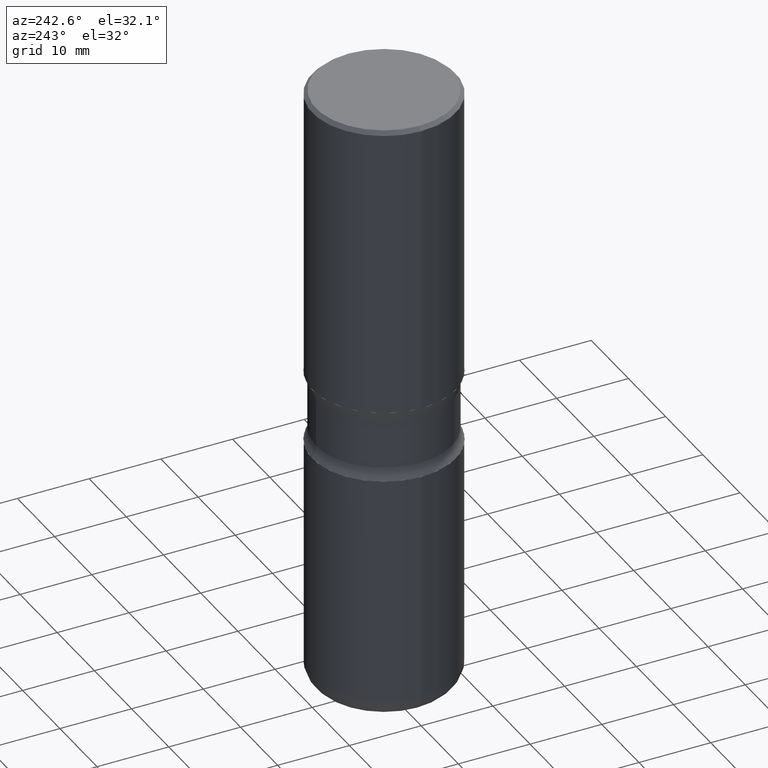
[diagram: clean part render]
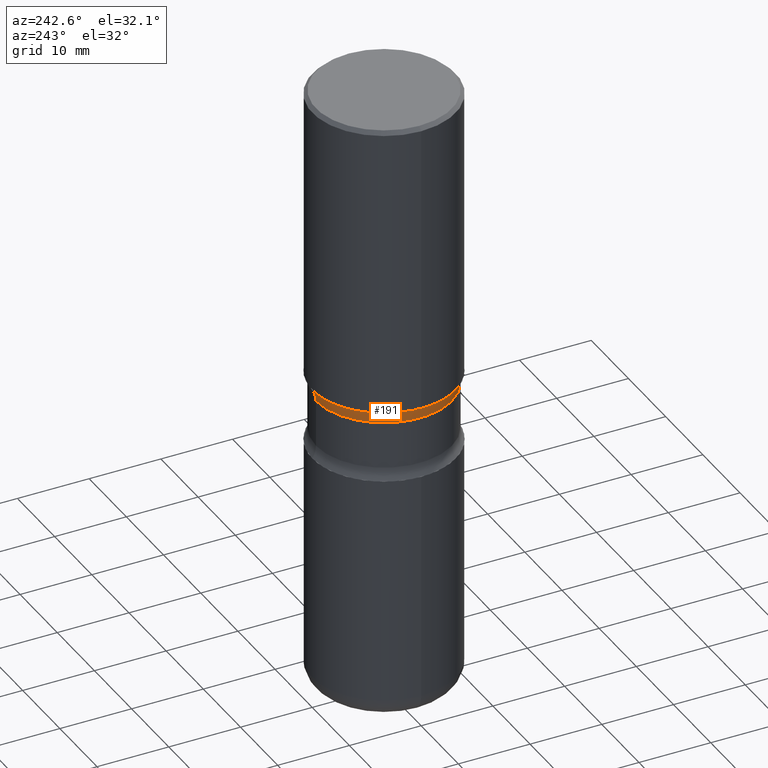
[diagram: same view with one face highlighted and labeled with its STEP entity id]
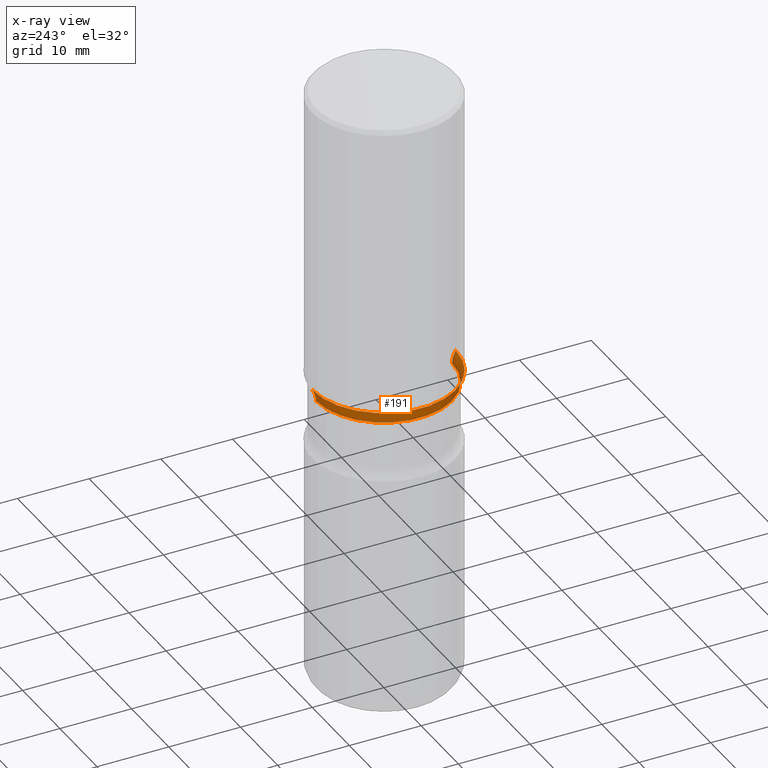
[diagram: x-ray of the same camera — body ghosted, the highlighted face saturated]
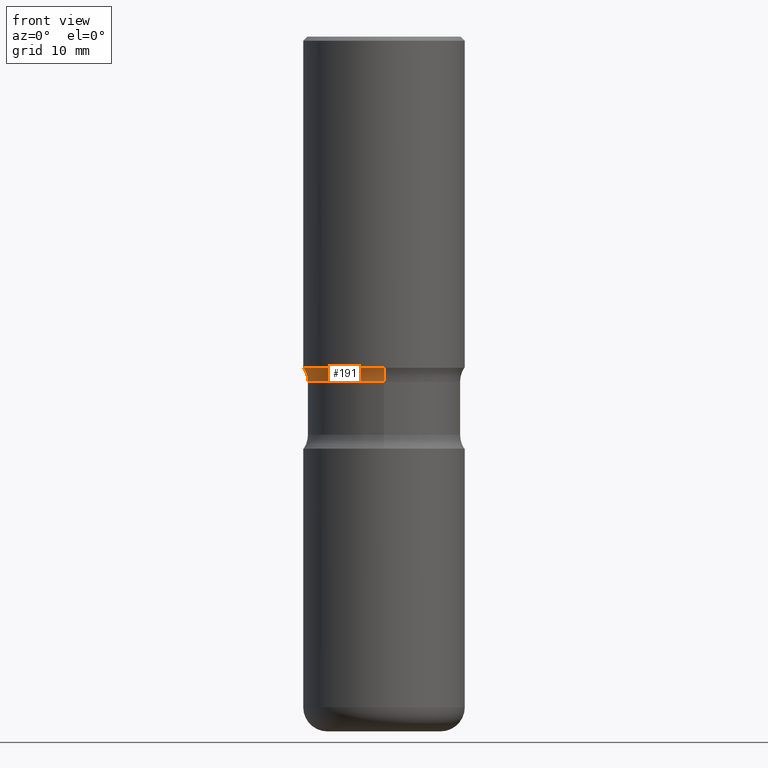
[diagram: same view with one face highlighted and labeled with its STEP entity id]
A machine part, auxiliary view. The second image highlights one B-rep face of the part: STEP entity #191.
The next image is the same camera in x-ray: the body ghosted, the highlighted face saturated — about 3% of this face is hidden behind the body in this view.
A second angle (front view) of the same face is appended — the face is thin or edge-on in the first view.
In plain terms, the highlighted toroidal blend (fillet) surface has major radius 12.6619 mm and minor (blend) radius 3.175 mm.
Its self-contained STEP definition (entity closure, byte-faithful):
#42 = AXIS2_PLACEMENT_3D ( 'NONE', #522, #132, #485 ) ;
#53 = DIRECTION ( 'NONE',  ( 1.000000000000000000, -6.860497997771530774E-15, 4.839926206449336526E-29 ) ) ;
#65 = DIRECTION ( 'NONE',  ( 2.395708792001990434E-29, -3.562740511317534079E-15, -1.000000000000000000 ) ) ;
#74 = DIRECTION ( 'NONE',  ( -6.982962677686265133E-15, -1.000000000000000000, 0.000000000000000000 ) ) ;
#101 = CARTESIAN_POINT ( 'NONE',  ( 2.608136560115860833E-15, 0.3734999999999940590, -1.682231930840100809 ) ) ;
#117 = AXIS2_PLACEMENT_3D ( 'NONE', #528, #65, #407 ) ;
#119 = CARTESIAN_POINT ( 'NONE',  ( -2.700978061722613781E-15, -0.3937000000000058231, -1.614099999999998536 ) ) ;
#126 = CARTESIAN_POINT ( 'NONE',  ( -2.631687031945119691E-15, -0.3735000000000057718, -1.682231930840098144 ) ) ;
#132 = DIRECTION ( 'NONE',  ( 2.395708792001990434E-29, -3.562740511317534079E-15, -1.000000000000000000 ) ) ;
#162 = DIRECTION ( 'NONE',  ( -1.000000000000000000, 6.982962677686265922E-15, -4.883557194083112901E-29 ) ) ;
#171 = AXIS2_PLACEMENT_3D ( 'NONE', #474, #162, #74 ) ;
#179 = AXIS2_PLACEMENT_3D ( 'NONE', #360, #232, #227 ) ;
#191 = ADVANCED_FACE ( 'NONE', ( #530 ), #246, .F. ) ;
#204 = VERTEX_POINT ( 'NONE', #101 ) ;
#210 = CIRCLE ( 'NONE', #171, 0.1250000000000001665 ) ;
#227 = DIRECTION ( 'NONE',  ( 6.982962677686265922E-15, 1.000000000000000000, -3.562740511317534079E-15 ) ) ;
#232 = DIRECTION ( 'NONE',  ( 2.395708792001990434E-29, -3.562740511317534079E-15, -1.000000000000000000 ) ) ;
#245 = ORIENTED_EDGE ( 'NONE', *, *, #443, .T. ) ;
#246 = TOROIDAL_SURFACE ( 'NONE', #179, 0.4985000000000001097, 0.1250000000000001665 ) ;
#248 = CARTESIAN_POINT ( 'NONE',  ( 2.749192406205125026E-15, 0.3936999999999947764, -1.614100000000001867 ) ) ;
#273 = VERTEX_POINT ( 'NONE', #126 ) ;
#280 = DIRECTION ( 'NONE',  ( 6.860497997771532351E-15, 1.000000000000000000, 0.000000000000000000 ) ) ;
#288 = EDGE_CURVE ( 'NONE', #273, #204, #333, .T. ) ;
#291 = CIRCLE ( 'NONE', #117, 0.3937000000000002720 ) ;
#309 = EDGE_CURVE ( 'NONE', #204, #426, #210, .T. ) ;
#310 = CARTESIAN_POINT ( 'NONE',  ( -3.419958251889067047E-15, -0.4985000000000058828, -1.682231930840097700 ) ) ;
#327 = ORIENTED_EDGE ( 'NONE', *, *, #348, .T. ) ;
#333 = CIRCLE ( 'NONE', #42, 0.3734999999999999432 ) ;
#348 = EDGE_CURVE ( 'NONE', #429, #426, #291, .T. ) ;
#360 = CARTESIAN_POINT ( 'NONE',  ( 4.161536693090229815E-29, -5.805185194292673437E-15, -1.682231930840099476 ) ) ;
#407 = DIRECTION ( 'NONE',  ( 6.982962677686265922E-15, 1.000000000000000000, -3.469453890861393601E-15 ) ) ;
#426 = VERTEX_POINT ( 'NONE', #248 ) ;
#429 = VERTEX_POINT ( 'NONE', #119 ) ;
#443 = EDGE_CURVE ( 'NONE', #273, #429, #451, .T. ) ;
#445 = ORIENTED_EDGE ( 'NONE', *, *, #288, .F. ) ;
#451 = CIRCLE ( 'NONE', #524, 0.1250000000000001665 ) ;
#473 = ORIENTED_EDGE ( 'NONE', *, *, #309, .F. ) ;
#474 = CARTESIAN_POINT ( 'NONE',  ( 3.481006894826646143E-15, 0.4984999999999942810, -1.682231930840101475 ) ) ;
#485 = DIRECTION ( 'NONE',  ( 6.982962677686264344E-15, 1.000000000000000000, -3.657092360996336845E-15 ) ) ;
#522 = CARTESIAN_POINT ( 'NONE',  ( 4.130045983377031678E-29, -5.850281682941861671E-15, -1.682231930840099476 ) ) ;
#524 = AXIS2_PLACEMENT_3D ( 'NONE', #310, #53, #280 ) ;
#528 = CARTESIAN_POINT ( 'NONE',  ( 3.966821717647334204E-29, -5.607545292823555871E-15, -1.614100000000000090 ) ) ;
#530 = FACE_OUTER_BOUND ( 'NONE', #550, .T. ) ;
#550 = EDGE_LOOP ( 'NONE', ( #445, #245, #327, #473 ) ) ;